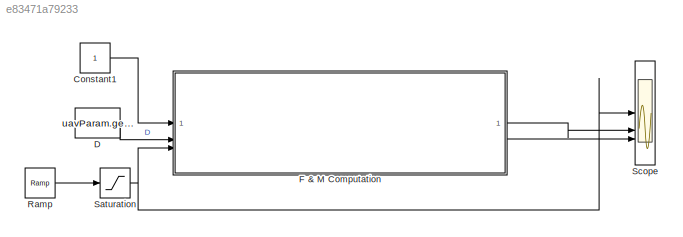
MODEL slx_e83471a79233
KIND model
CONFIG AbsTol = auto
CONFIG EnableMultiTasking = off
CONFIG FixedStep = auto
CONFIG MaxStep = auto
CONFIG MinStep = auto
CONFIG RelTol = 1e-3
CONFIG SampleTimeConstraint = Unconstrained
CONFIG SolverName = VariableStepAuto
CONFIG StartTime = 0.0
CONFIG StopTime = 10.0
BLOCK [Constant] Constant1
BLOCK [Constant] D
  Value = uavParam.geom.PropDiameter
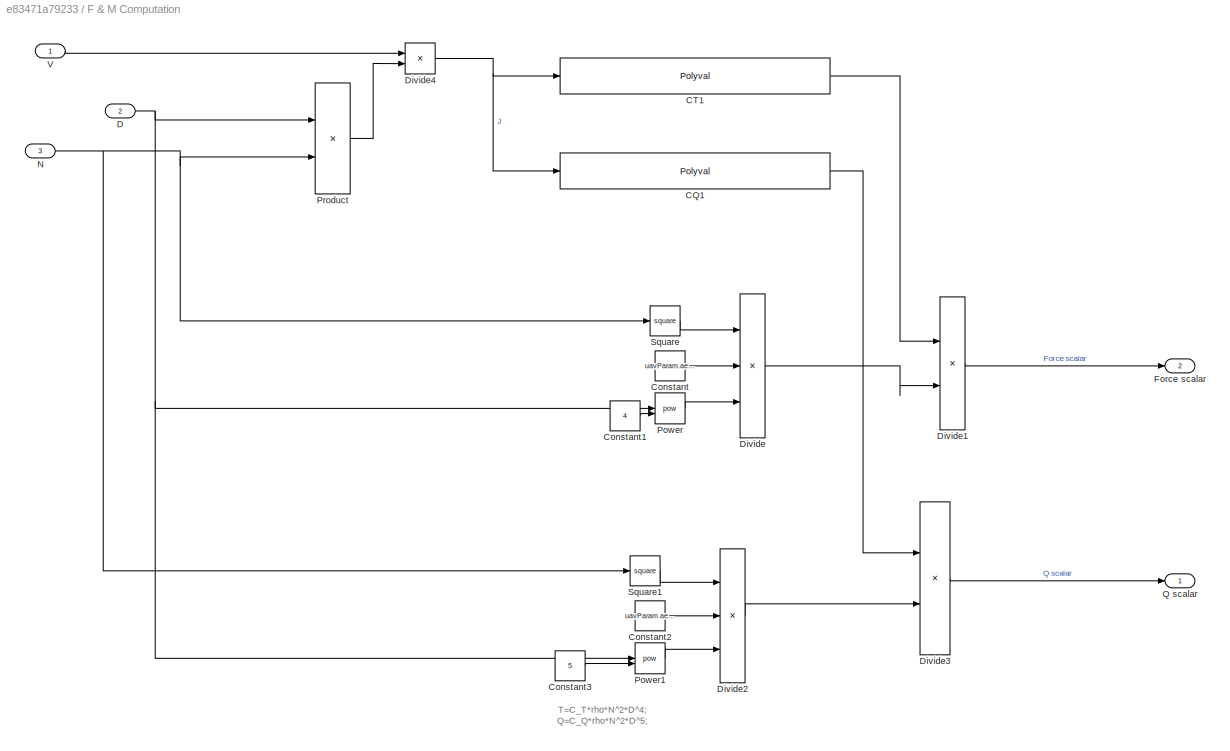
BLOCK [SubSystem] F & M Computation
BLOCK [Polyval] F & M Computation/CQ1
  Coefs = [0.04280,-0.05046,0.005711,-0.003293, 0.007048]
BLOCK [Polyval] F & M Computation/CT1
  Coefs = [0.03338, -0.1265,-0.1210,0.1142]
BLOCK [Constant] F & M Computation/Constant
  Value = uavParam.aero.rho
BLOCK [Constant] F & M Computation/Constant1
  Value = 4
BLOCK [Constant] F & M Computation/Constant2
  Value = uavParam.aero.rho
BLOCK [Constant] F & M Computation/Constant3
  Value = 5
BLOCK [Inport] F & M Computation/D
  Port = 2
BLOCK [Product] F & M Computation/Divide
  Inputs = ***
BLOCK [Product] F & M Computation/Divide1
  Inputs = **
BLOCK [Product] F & M Computation/Divide2
  Inputs = ***
BLOCK [Product] F & M Computation/Divide3
  Inputs = **
BLOCK [Product] F & M Computation/Divide4
  Inputs = */
BLOCK [Outport] F & M Computation/Force scalar
  Port = 2
BLOCK [Inport] F & M Computation/N
  Port = 3
BLOCK [Math] F & M Computation/Power
  Operator = pow
BLOCK [Math] F & M Computation/Power1
  Operator = pow
BLOCK [Product] F & M Computation/Product
BLOCK [Outport] F & M Computation/Q scalar
BLOCK [Math] F & M Computation/Square
  Operator = square
BLOCK [Math] F & M Computation/Square1
  Operator = square
BLOCK [Inport] F & M Computation/V
BLOCK [Reference] Ramp  REF=simulink/Sources/Ramp
  SourceBlock = simulink/Sources/Ramp
  SourceType = Ramp
BLOCK [Saturate] Saturation
  LowerLimit = 16
  UpperLimit = 500
BLOCK [Scope] Scope
  Floating = off
  NumInputPorts = 3
  ScopeSpecificationString = Simulink.scopes.TimeScopeBlockCfg('CurrentConfiguration', extmgr.ConfigurationSet(extmgr.Configuration('Core','General UI',true),extmgr.Configuration('Core','Source UI',true),extmgr.Configuration('Sources','WiredSimulink',true),extmgr.Configuration('Visuals','Time Domain',true,'SerializedDisplays',{struct('MinYLimReal','-0.75','MaxYLimReal','166.75','YLabelReal','','MinYLimMag','0.00000','MaxYLimM...<+2987ch>
ANNOTATION F & M Computation: T=C_T*rho*N^2*D^4; Q=C_Q*rho*N^2*D^5;
LINE Constant1:1 -> F & M Computation:1
LINE D:1 -> F & M Computation:2
LINE F & M Computation/CQ1:1 -> F & M Computation/Divide3:1
LINE F & M Computation/CT1:1 -> F & M Computation/Divide1:1
LINE F & M Computation/Constant1:1 -> F & M Computation/Power:2
LINE F & M Computation/Constant2:1 -> F & M Computation/Divide2:2
LINE F & M Computation/Constant3:1 -> F & M Computation/Power1:2
LINE F & M Computation/Constant:1 -> F & M Computation/Divide:2
NET F & M Computation/D:1 -> F & M Computation/Power1:1, F & M Computation/Power:1, F & M Computation/Product:1
LINE F & M Computation/Divide1:1 -> F & M Computation/Force scalar:1
LINE F & M Computation/Divide2:1 -> F & M Computation/Divide3:2
LINE F & M Computation/Divide3:1 -> F & M Computation/Q scalar:1
NET F & M Computation/Divide4:1 -> F & M Computation/CQ1:1, F & M Computation/CT1:1
LINE F & M Computation/Divide:1 -> F & M Computation/Divide1:2
NET F & M Computation/N:1 -> F & M Computation/Product:2, F & M Computation/Square1:1, F & M Computation/Square:1
LINE F & M Computation/Power1:1 -> F & M Computation/Divide2:3
LINE F & M Computation/Power:1 -> F & M Computation/Divide:3
LINE F & M Computation/Product:1 -> F & M Computation/Divide4:2
LINE F & M Computation/Square1:1 -> F & M Computation/Divide2:1
LINE F & M Computation/Square:1 -> F & M Computation/Divide:1
LINE F & M Computation/V:1 -> F & M Computation/Divide4:1
LINE F & M Computation:1 -> Scope:2
LINE F & M Computation:2 -> Scope:3
LINE Ramp:1 -> Saturation:1
NET Saturation:1 -> F & M Computation:3, Scope:1
note: NET lines group one-source signal fan-out (src -> all destinations, sorted); 1:1 wires keep LINE
